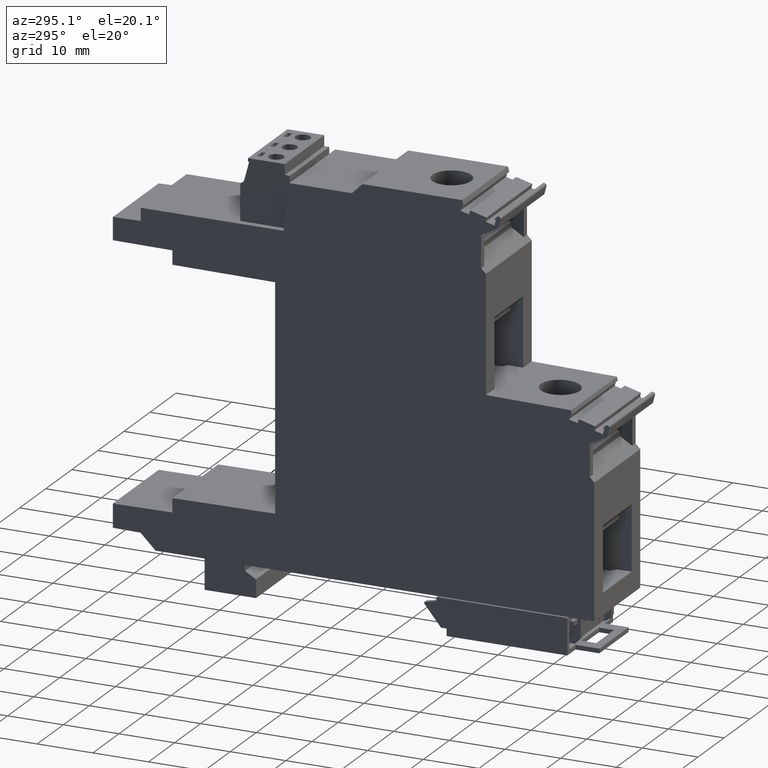
[diagram: clean part render]
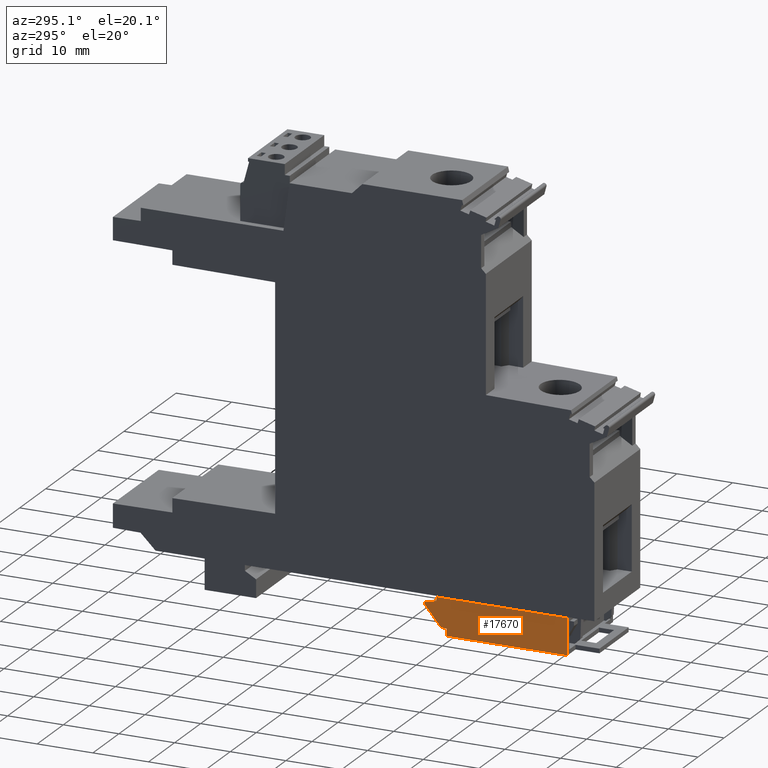
[diagram: same view with one face highlighted and labeled with its STEP entity id]
A machine part, auxiliary view. The second image highlights one B-rep face of the part: STEP entity #17670.
In plain terms, the highlighted planar face has unit normal (-1, 0, 0).
Its self-contained STEP definition (entity closure, byte-faithful):
#12520=CARTESIAN_POINT('',(36.4962375248763,17.9383518634082,
0.0807609998884011));
#12530=VERTEX_POINT('',#12520);
#12560=CARTESIAN_POINT('',(36.4962375248766,37.2383518634083,
0.0807609998884011));
#12570=DIRECTION('',(1.59206534293698E-14,1.,3.03749006263974E-32));
#12580=VECTOR('',#12570,1.);
#12590=LINE('',#12560,#12580);
#12600=CARTESIAN_POINT('',(36.496237524876,-3.76164813659175,
0.0807609998884011));
#12610=VERTEX_POINT('',#12600);
#12620=EDGE_CURVE('',#12610,#12530,#12590,.T.);
#14710=CARTESIAN_POINT('',(35.1962375248757,18.9383518634081,
0.0807609998884011));
#14720=VERTEX_POINT('',#14710);
#14750=CARTESIAN_POINT('',(35.1962375248755,37.2383518634083,
0.0807609998884011));
#14760=DIRECTION('',(1.25010560010342E-14,-1.,1.74456213612088E-30));
#14770=VECTOR('',#14760,1.);
#14780=LINE('',#14750,#14770);
#14790=CARTESIAN_POINT('',(35.1962375248757,17.9383518634081,
0.0807609998884011));
#14800=VERTEX_POINT('',#14790);
#14810=EDGE_CURVE('',#14720,#14800,#14780,.T.);
#16310=CARTESIAN_POINT('',(29.996237524876,-3.76164813659183,
0.0807609998884011));
#16320=VERTEX_POINT('',#16310);
#16350=CARTESIAN_POINT('',(29.9962375248755,37.2383518634082,
0.0807609998884011));
#16360=DIRECTION('',(-1.25010560010342E-14,1.,-1.74456213612088E-30));
#16370=VECTOR('',#16360,1.);
#16380=LINE('',#16350,#16370);
#16390=CARTESIAN_POINT('',(29.9962375248757,19.7383518634081,
0.0807609998884011));
#16400=VERTEX_POINT('',#16390);
#16410=EDGE_CURVE('',#16320,#16400,#16380,.T.);
#16680=CARTESIAN_POINT('',(14.8645433962752,19.738351863408,
0.0807609998883994));
#16690=DIRECTION('',(1.,1.25010560010342E-14,6.24500451351651E-17));
#16700=VECTOR('',#16690,1.);
#16710=LINE('',#16680,#16700);
#16720=CARTESIAN_POINT('',(30.6962375248757,19.7383518634082,
0.0807609998884011));
#16730=VERTEX_POINT('',#16720);
#16740=EDGE_CURVE('',#16400,#16730,#16710,.T.);
#17030=CARTESIAN_POINT('',(31.1962375248756,21.9383518634081,
0.0807609998884011));
#17040=VERTEX_POINT('',#17030);
#17070=CARTESIAN_POINT('',(14.8645433962752,21.9383518634079,
0.0807609998883994));
#17080=DIRECTION('',(1.,1.25010560010342E-14,6.24500451351651E-17));
#17090=VECTOR('',#17080,1.);
#17100=LINE('',#17070,#17090);
#17110=CARTESIAN_POINT('',(31.4962375248756,21.9383518634081,
0.0807609998884011));
#17120=VERTEX_POINT('',#17110);
#17130=EDGE_CURVE('',#17040,#17120,#17100,.T.);
#17310=CARTESIAN_POINT('',(14.864543396275,37.2354939007008,
0.0807609998883994));
#17320=DIRECTION('',(6.24500451351651E-17,-9.63870624619065E-31,-1.));
#17330=DIRECTION('',(1.25010560010342E-14,-1.,1.74456213612088E-30));
#17340=AXIS2_PLACEMENT_3D('',#17310,#17320,#17330);
#17350=PLANE('',#17340);
#17360=CARTESIAN_POINT('',(14.8645433962755,-3.76164813659205,
0.0807609998883994));
#17370=DIRECTION('',(-1.,-1.25010560010342E-14,-6.24500451351651E-17));
#17380=VECTOR('',#17370,1.);
#17390=LINE('',#17360,#17380);
#17400=EDGE_CURVE('',#12610,#16320,#17390,.T.);
#17410=ORIENTED_EDGE('',*,*,#17400,.T.);
#17420=ORIENTED_EDGE('',*,*,#12620,.F.);
#17430=CARTESIAN_POINT('',(37.8962375248757,17.9383518634082,
0.0807609998884011));
#17440=DIRECTION('',(1.,1.25010560010342E-14,6.24500451351651E-17));
#17450=VECTOR('',#17440,1.);
#17460=LINE('',#17430,#17450);
#17470=EDGE_CURVE('',#14800,#12530,#17460,.T.);
#17480=ORIENTED_EDGE('',*,*,#17470,.T.);
#17490=ORIENTED_EDGE('',*,*,#14810,.T.);
#17500=CARTESIAN_POINT('',(13.9781163598472,36.1422338891065,
0.0807609998883994));
#17510=DIRECTION('',(0.776755748719511,-0.629801958421211,
4.8508431566533E-17));
#17520=VECTOR('',#17510,1.);
#17530=LINE('',#17500,#17520);
#17540=EDGE_CURVE('',#17120,#14720,#17530,.T.);
#17550=ORIENTED_EDGE('',*,*,#17540,.T.);
#17560=ORIENTED_EDGE('',*,*,#17130,.T.);
#17570=CARTESIAN_POINT('',(33.6999571140449,32.9547180557532,
0.0807609998884011));
#17580=DIRECTION('',(0.221621103588962,0.975132855791461,
1.38402479220348E-17));
#17590=VECTOR('',#17580,1.);
#17600=LINE('',#17570,#17590);
#17610=EDGE_CURVE('',#16730,#17040,#17600,.T.);
#17620=ORIENTED_EDGE('',*,*,#17610,.T.);
#17630=ORIENTED_EDGE('',*,*,#16740,.T.);
#17640=ORIENTED_EDGE('',*,*,#16410,.T.);
#17650=EDGE_LOOP('',(#17640,#17630,#17620,#17560,#17550,#17490,#17480,
#17420,#17410));
#17660=FACE_OUTER_BOUND('',#17650,.T.);
#17670=ADVANCED_FACE('F59',(#17660),#17350,.T.);